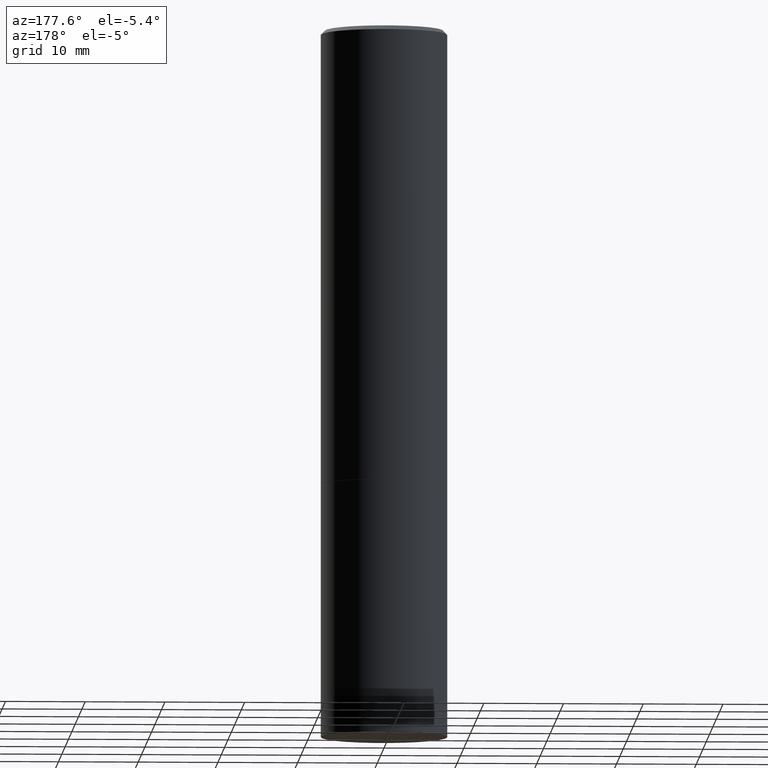
[diagram: clean part render]
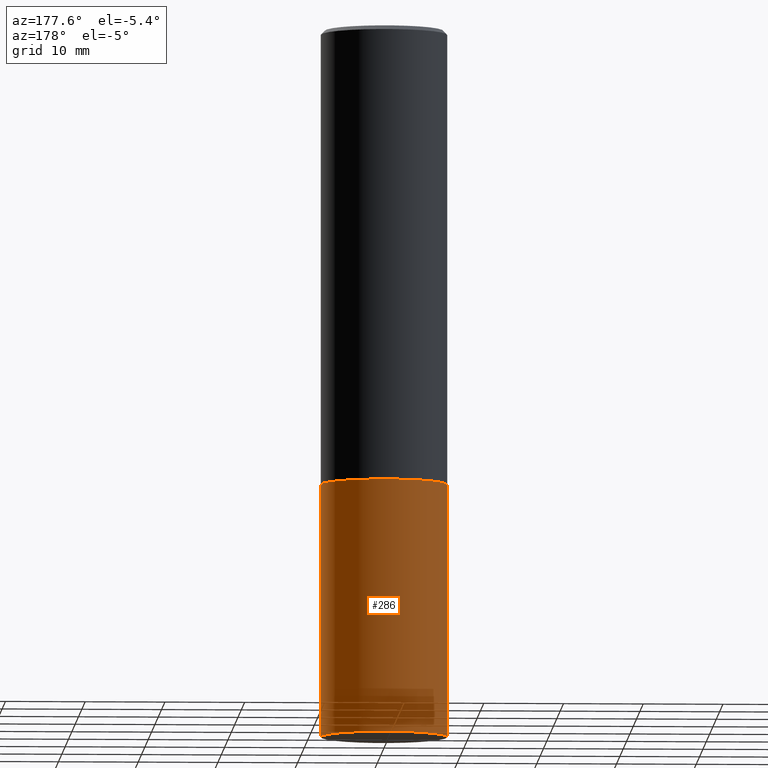
[diagram: same view with one face highlighted and labeled with its STEP entity id]
A machine part, auxiliary view. The second image highlights one B-rep face of the part: STEP entity #286.
In plain terms, the highlighted cylindrical surface (partial cylindrical patch) has radius 7.9375 mm, axis along (-0, 0, 1).
Its self-contained STEP definition (entity closure, byte-faithful):
#4 = LINE ( 'NONE', #166, #90 ) ;
#16 = LINE ( 'NONE', #81, #245 ) ;
#22 = CIRCLE ( 'NONE', #328, 0.3125000000000000000 ) ;
#23 = DIRECTION ( 'NONE',  ( -2.445468806185136877E-29, 3.491481338843145188E-15, 1.000000000000000000 ) ) ;
#33 = CYLINDRICAL_SURFACE ( 'NONE', #289, 0.3125000000000000000 ) ;
#35 = CARTESIAN_POINT ( 'NONE',  ( -0.3125000000000000000, -7.817562799923728448E-15, -2.249999999999999556 ) ) ;
#41 = DIRECTION ( 'NONE',  ( 1.000000000000000000, -6.982962677686265133E-15, 0.000000000000000000 ) ) ;
#69 = CARTESIAN_POINT ( 'NONE',  ( 5.502304813916556222E-29, -7.855833012397075293E-15, -2.249999999999999556 ) ) ;
#79 = VERTEX_POINT ( 'NONE', #211 ) ;
#81 = CARTESIAN_POINT ( 'NONE',  ( 0.3125000000000000000, -2.182175836776958347E-15, 1.523805242436230075E-29 ) ) ;
#87 = CARTESIAN_POINT ( 'NONE',  ( -0.3124999999999997224, -1.003800884917405415E-14, -3.500000000000000000 ) ) ;
#90 = VECTOR ( 'NONE', #131, 39.37007874015748143 ) ;
#110 = DIRECTION ( 'NONE',  ( -2.445468806185136597E-29, 3.491481338843145583E-15, 1.000000000000000000 ) ) ;
#111 = EDGE_CURVE ( 'NONE', #79, #288, #16, .T. ) ;
#124 = ORIENTED_EDGE ( 'NONE', *, *, #331, .F. ) ;
#131 = DIRECTION ( 'NONE',  ( -2.445468806185136877E-29, 3.491481338843145188E-15, 1.000000000000000000 ) ) ;
#134 = DIRECTION ( 'NONE',  ( -2.445468806185136597E-29, 3.491481338843145583E-15, 1.000000000000000000 ) ) ;
#143 = ORIENTED_EDGE ( 'NONE', *, *, #212, .T. ) ;
#157 = EDGE_CURVE ( 'NONE', #79, #320, #22, .T. ) ;
#161 = CARTESIAN_POINT ( 'NONE',  ( 0.000000000000000000, 0.000000000000000000, 0.000000000000000000 ) ) ;
#166 = CARTESIAN_POINT ( 'NONE',  ( -0.3125000000000000000, 2.220446049250313081E-15, -1.537167215704658232E-29 ) ) ;
#194 = DIRECTION ( 'NONE',  ( 1.000000000000000000, -6.982962677686266711E-15, 4.876176775795936353E-29 ) ) ;
#211 = CARTESIAN_POINT ( 'NONE',  ( 0.3124999999999997224, -1.436409031025461138E-14, -3.500000000000000000 ) ) ;
#212 = EDGE_CURVE ( 'NONE', #320, #298, #4, .T. ) ;
#223 = DIRECTION ( 'NONE',  ( -2.445468806185136597E-29, 3.491481338843145583E-15, 1.000000000000000000 ) ) ;
#236 = DIRECTION ( 'NONE',  ( 1.000000000000000000, -6.982962677686269077E-15, 0.000000000000000000 ) ) ;
#245 = VECTOR ( 'NONE', #23, 39.37007874015748143 ) ;
#262 = CIRCLE ( 'NONE', #357, 0.3125000000000000000 ) ;
#275 = CARTESIAN_POINT ( 'NONE',  ( 8.559140821647976968E-29, -1.222018468595100934E-14, -3.500000000000000000 ) ) ;
#286 = ADVANCED_FACE ( 'NONE', ( #306 ), #33, .T. ) ;
#287 = ORIENTED_EDGE ( 'NONE', *, *, #157, .T. ) ;
#288 = VERTEX_POINT ( 'NONE', #309 ) ;
#289 = AXIS2_PLACEMENT_3D ( 'NONE', #161, #223, #194 ) ;
#298 = VERTEX_POINT ( 'NONE', #35 ) ;
#306 = FACE_OUTER_BOUND ( 'NONE', #348, .T. ) ;
#309 = CARTESIAN_POINT ( 'NONE',  ( 0.3125000000000000000, -1.003800884917403364E-14, -2.249999999999999556 ) ) ;
#320 = VERTEX_POINT ( 'NONE', #87 ) ;
#327 = ORIENTED_EDGE ( 'NONE', *, *, #111, .F. ) ;
#328 = AXIS2_PLACEMENT_3D ( 'NONE', #275, #110, #236 ) ;
#331 = EDGE_CURVE ( 'NONE', #288, #298, #262, .T. ) ;
#348 = EDGE_LOOP ( 'NONE', ( #287, #143, #124, #327 ) ) ;
#357 = AXIS2_PLACEMENT_3D ( 'NONE', #69, #134, #41 ) ;